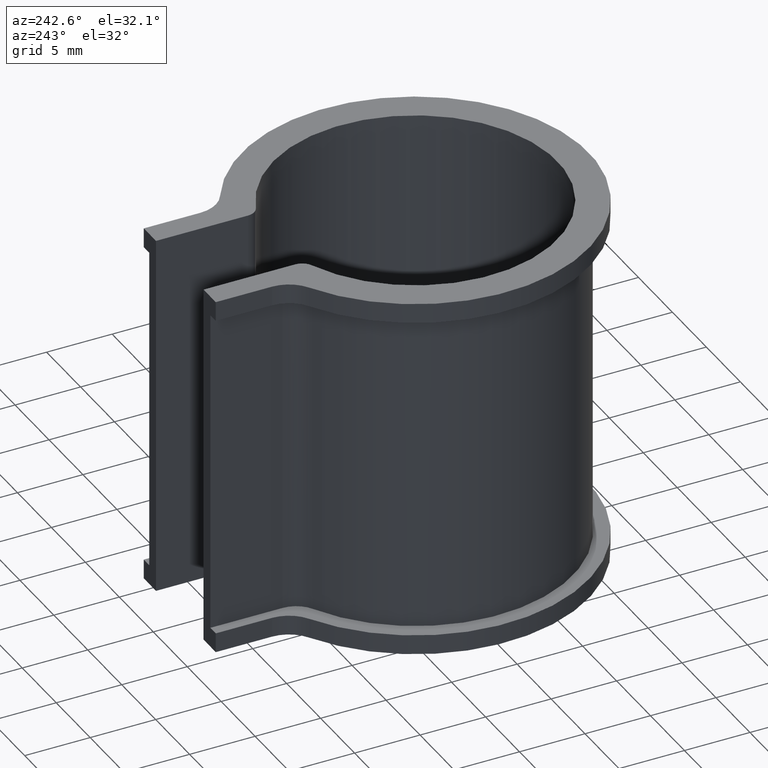
[diagram: clean part render]
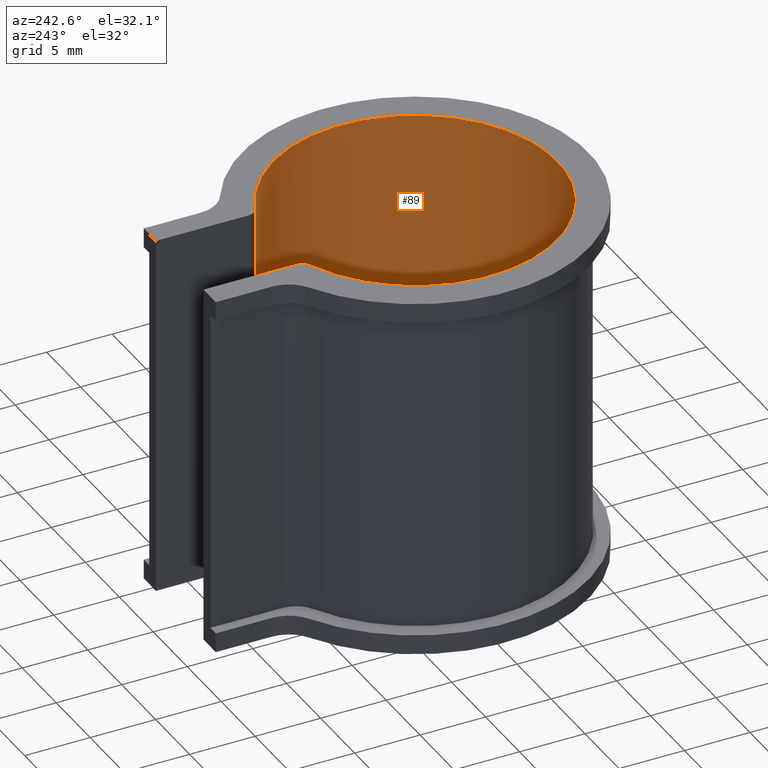
[diagram: same view with one face highlighted and labeled with its STEP entity id]
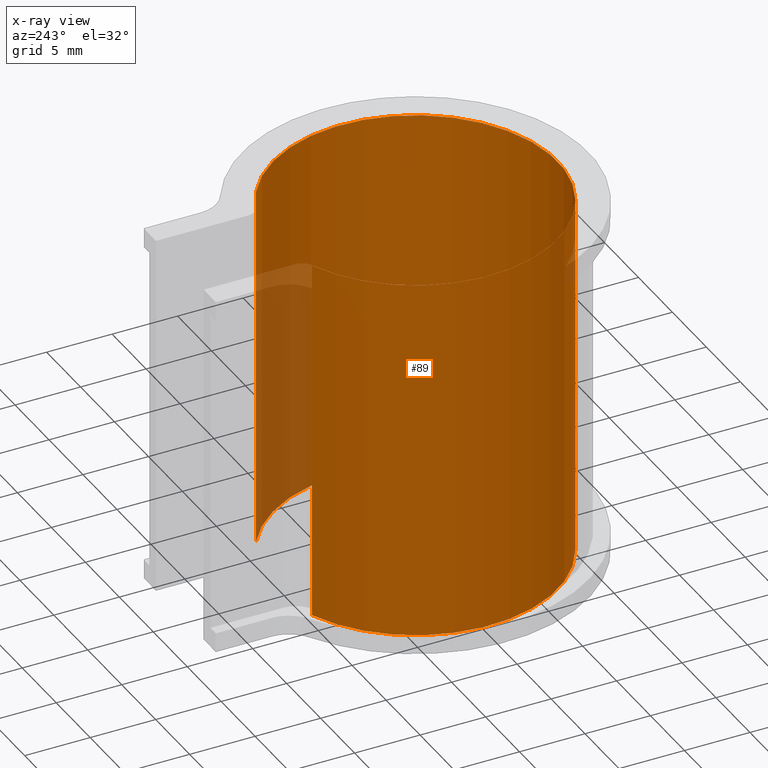
[diagram: x-ray of the same camera — body ghosted, the highlighted face saturated]
A machine part, auxiliary view. The second image highlights one B-rep face of the part: STEP entity #89.
The next image is the same camera in x-ray: the body ghosted, the highlighted face saturated — about 9% of this face is hidden behind the body in this view.
In plain terms, the highlighted cylindrical surface (partial cylindrical patch) has radius 10.85 mm, axis along (0, 0, -1).
Its self-contained STEP definition (entity closure, byte-faithful):
#89 = ADVANCED_FACE( '', ( #130 ), #131, .F. );
#130 = FACE_OUTER_BOUND( '', #182, .T. );
#131 = CYLINDRICAL_SURFACE( '', #183, 10.8500000000000 );
#182 = EDGE_LOOP( '', ( #340, #341, #342, #343 ) );
#183 = AXIS2_PLACEMENT_3D( '', #344, #345, #346 );
#340 = ORIENTED_EDGE( '', *, *, #480, .T. );
#341 = ORIENTED_EDGE( '', *, *, #493, .T. );
#342 = ORIENTED_EDGE( '', *, *, #467, .F. );
#343 = ORIENTED_EDGE( '', *, *, #494, .T. );
#344 = CARTESIAN_POINT( '', ( 0.000000000000000, 0.000000000000000, -25.0000000000000 ) );
#345 = DIRECTION( '', ( 0.000000000000000, 0.000000000000000, -1.00000000000000 ) );
#346 = DIRECTION( '', ( -0.322580645161290, -0.946541983943304, 0.000000000000000 ) );
#467 = EDGE_CURVE( '', #573, #574, #575, .T. );
#480 = EDGE_CURVE( '', #595, #593, #596, .T. );
#493 = EDGE_CURVE( '', #593, #574, #613, .T. );
#494 = EDGE_CURVE( '', #573, #595, #614, .F. );
#573 = VERTEX_POINT( '', #720 );
#574 = VERTEX_POINT( '', #721 );
#575 = CIRCLE( '', #722, 10.8500000000000 );
#593 = VERTEX_POINT( '', #746 );
#595 = VERTEX_POINT( '', #748 );
#596 = CIRCLE( '', #749, 10.8500000000000 );
#613 = LINE( '', #774, #775 );
#614 = LINE( '', #776, #777 );
#720 = CARTESIAN_POINT( '', ( 4.12025316455697, 10.0372313841995, 1.50000000000000 ) );
#721 = CARTESIAN_POINT( '', ( -4.12025316455696, 10.0372313841995, 1.50000000000000 ) );
#722 = AXIS2_PLACEMENT_3D( '', #851, #852, #853 );
#746 = CARTESIAN_POINT( '', ( -4.12025316455696, 10.0372313841995, -26.5000000000000 ) );
#748 = CARTESIAN_POINT( '', ( 4.12025316455697, 10.0372313841995, -26.5000000000000 ) );
#749 = AXIS2_PLACEMENT_3D( '', #878, #879, #880 );
#774 = CARTESIAN_POINT( '', ( -4.12025316455696, 10.0372313841995, -25.0000000000000 ) );
#775 = VECTOR( '', #901, 1000.00000000000 );
#776 = CARTESIAN_POINT( '', ( 4.12025316455697, 10.0372313841994, -25.0000000000000 ) );
#777 = VECTOR( '', #902, 1000.00000000000 );
#851 = CARTESIAN_POINT( '', ( 0.000000000000000, 1.38777878078145E-014, 1.50000000000000 ) );
#852 = DIRECTION( '', ( 0.000000000000000, 0.000000000000000, -1.00000000000000 ) );
#853 = DIRECTION( '', ( 1.00000000000000, 0.000000000000000, 0.000000000000000 ) );
#878 = CARTESIAN_POINT( '', ( 0.000000000000000, 1.38777878078145E-014, -26.5000000000000 ) );
#879 = DIRECTION( '', ( 0.000000000000000, 0.000000000000000, -1.00000000000000 ) );
#880 = DIRECTION( '', ( 1.00000000000000, 0.000000000000000, 0.000000000000000 ) );
#901 = DIRECTION( '', ( 0.000000000000000, 0.000000000000000, 1.00000000000000 ) );
#902 = DIRECTION( '', ( 0.000000000000000, 0.000000000000000, 1.00000000000000 ) );